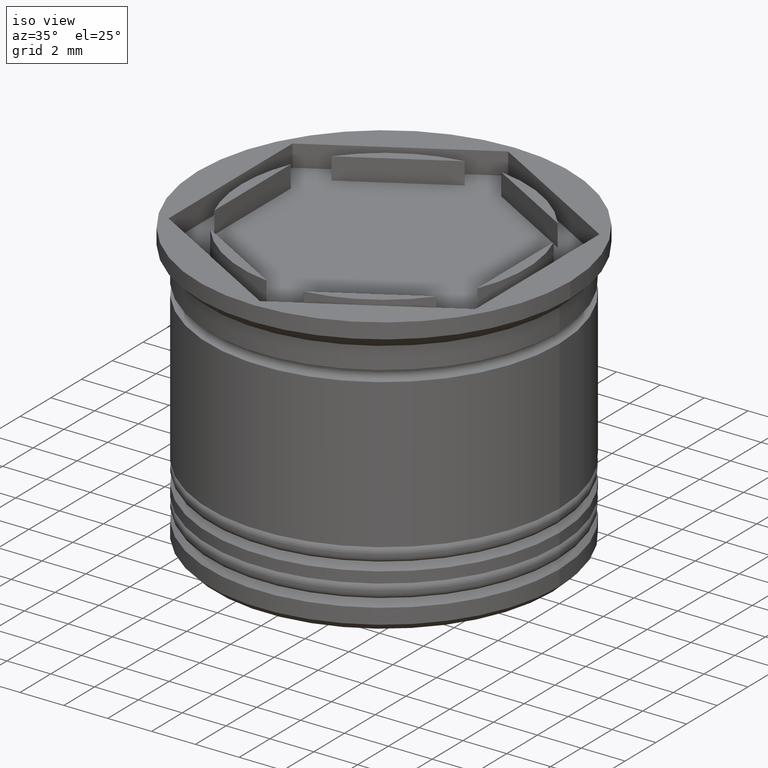
[diagram: clean part render]
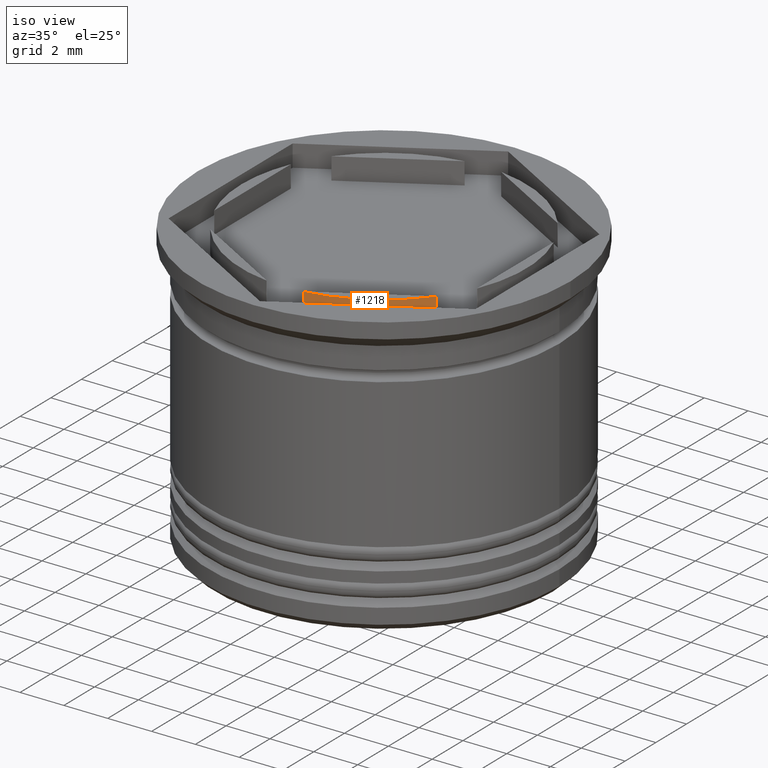
[diagram: same view with one face highlighted and labeled with its STEP entity id]
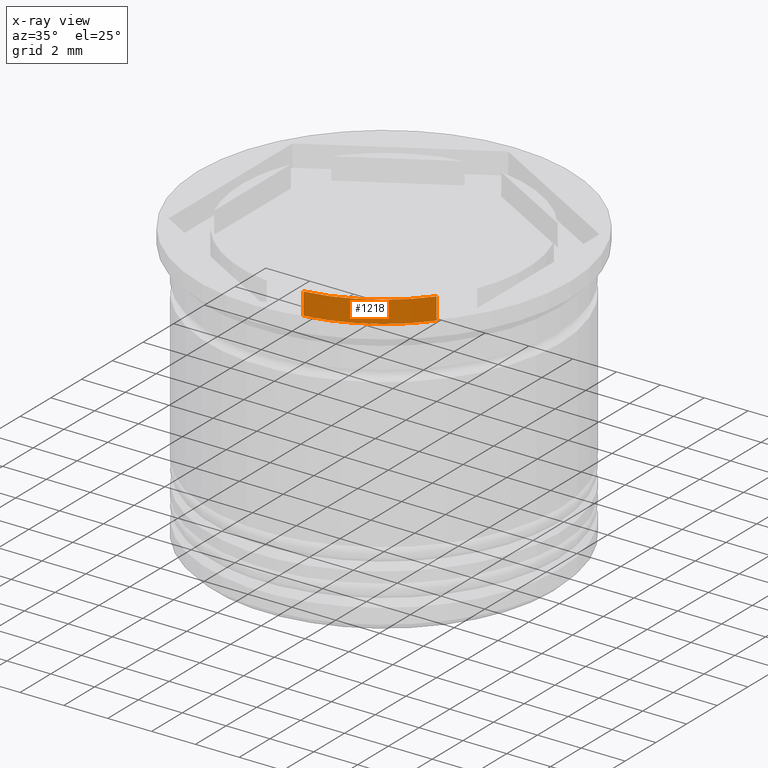
[diagram: x-ray of the same camera — body ghosted, the highlighted face saturated]
A machine part, iso view. The second image highlights one B-rep face of the part: STEP entity #1218.
The next image is the same camera in x-ray: the body ghosted, the highlighted face saturated — about 0% of this face is hidden behind the body in this view.
In plain terms, the highlighted cylindrical surface (partial cylindrical patch) has radius 6.5 mm, axis along (-0, -0, -1).
Its self-contained STEP definition (entity closure, byte-faithful):
#88 = AXIS2_PLACEMENT_3D ( 'NONE', #393, #983, #1742 ) ;
#91 = LINE ( 'NONE', #1626, #695 ) ;
#101 = FACE_OUTER_BOUND ( 'NONE', #954, .T. ) ;
#267 = CARTESIAN_POINT ( 'NONE',  ( 0.8349364905389047298, -6.446152422706633800, -1.000000000000000888 ) ) ;
#298 = ORIENTED_EDGE ( 'NONE', *, *, #1722, .T. ) ;
#354 = CARTESIAN_POINT ( 'NONE',  ( 0.8349364905389020652, -6.446152422706632024, 0.000000000000000000 ) ) ;
#393 = CARTESIAN_POINT ( 'NONE',  ( 0.000000000000000000, 0.000000000000000000, 0.000000000000000000 ) ) ;
#411 = CIRCLE ( 'NONE', #1430, 6.500000000000000888 ) ;
#512 = CARTESIAN_POINT ( 'NONE',  ( 0.8349364905389003999, -6.446152422706632912, 18.38477631085023134 ) ) ;
#568 = VECTOR ( 'NONE', #1897, 1000.000000000000000 ) ;
#636 = EDGE_CURVE ( 'NONE', #1049, #1249, #1619, .T. ) ;
#695 = VECTOR ( 'NONE', #1809, 1000.000000000000000 ) ;
#720 = EDGE_CURVE ( 'NONE', #1468, #883, #91, .T. ) ;
#883 = VERTEX_POINT ( 'NONE', #1556 ) ;
#896 = DIRECTION ( 'NONE',  ( -0.000000000000000000, -0.000000000000000000, -1.000000000000000000 ) ) ;
#954 = EDGE_LOOP ( 'NONE', ( #1925, #1903, #298, #1733 ) ) ;
#983 = DIRECTION ( 'NONE',  ( -0.000000000000000000, -0.000000000000000000, 1.000000000000000000 ) ) ;
#1049 = VERTEX_POINT ( 'NONE', #354 ) ;
#1131 = CARTESIAN_POINT ( 'NONE',  ( 5.165063509461095492, -3.946152422706636909, -1.000000000000000888 ) ) ;
#1173 = CYLINDRICAL_SURFACE ( 'NONE', #1426, 6.500000000000000888 ) ;
#1180 = DIRECTION ( 'NONE',  ( 1.000000000000000000, 0.000000000000000000, 0.000000000000000000 ) ) ;
#1218 = ADVANCED_FACE ( 'NONE', ( #101 ), #1173, .T. ) ;
#1249 = VERTEX_POINT ( 'NONE', #267 ) ;
#1426 = AXIS2_PLACEMENT_3D ( 'NONE', #1487, #896, #1811 ) ;
#1430 = AXIS2_PLACEMENT_3D ( 'NONE', #1542, #1527, #1180 ) ;
#1468 = VERTEX_POINT ( 'NONE', #1131 ) ;
#1487 = CARTESIAN_POINT ( 'NONE',  ( 0.000000000000000000, 0.000000000000000000, 18.38477631085023134 ) ) ;
#1527 = DIRECTION ( 'NONE',  ( 0.000000000000000000, 0.000000000000000000, 1.000000000000000000 ) ) ;
#1540 = EDGE_CURVE ( 'NONE', #1049, #883, #1854, .T. ) ;
#1542 = CARTESIAN_POINT ( 'NONE',  ( 0.000000000000000000, 0.000000000000000000, -1.000000000000000000 ) ) ;
#1556 = CARTESIAN_POINT ( 'NONE',  ( 5.165063509461093716, -3.946152422706633356, 0.000000000000000000 ) ) ;
#1619 = LINE ( 'NONE', #512, #568 ) ;
#1626 = CARTESIAN_POINT ( 'NONE',  ( 5.165063509461097269, -3.946152422706632468, 18.38477631085023134 ) ) ;
#1722 = EDGE_CURVE ( 'NONE', #1249, #1468, #411, .T. ) ;
#1733 = ORIENTED_EDGE ( 'NONE', *, *, #720, .T. ) ;
#1742 = DIRECTION ( 'NONE',  ( 1.000000000000000000, 0.000000000000000000, 0.000000000000000000 ) ) ;
#1809 = DIRECTION ( 'NONE',  ( 0.000000000000000000, 0.000000000000000000, 1.000000000000000000 ) ) ;
#1811 = DIRECTION ( 'NONE',  ( -1.000000000000000000, 0.000000000000000000, 0.000000000000000000 ) ) ;
#1854 = CIRCLE ( 'NONE', #88, 6.500000000000000888 ) ;
#1897 = DIRECTION ( 'NONE',  ( -0.000000000000000000, -0.000000000000000000, -1.000000000000000000 ) ) ;
#1903 = ORIENTED_EDGE ( 'NONE', *, *, #636, .T. ) ;
#1925 = ORIENTED_EDGE ( 'NONE', *, *, #1540, .F. ) ;